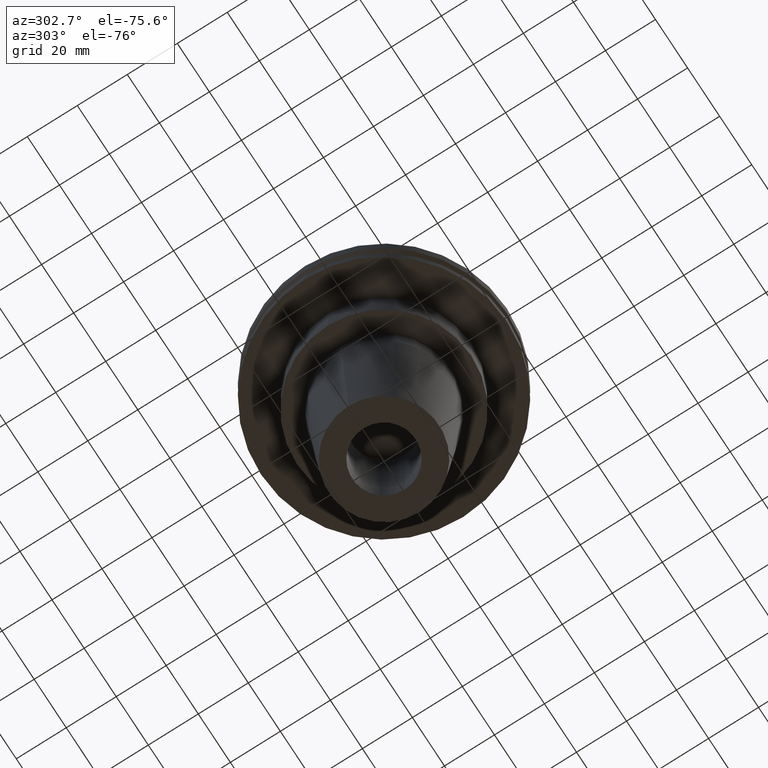
[diagram: clean part render]
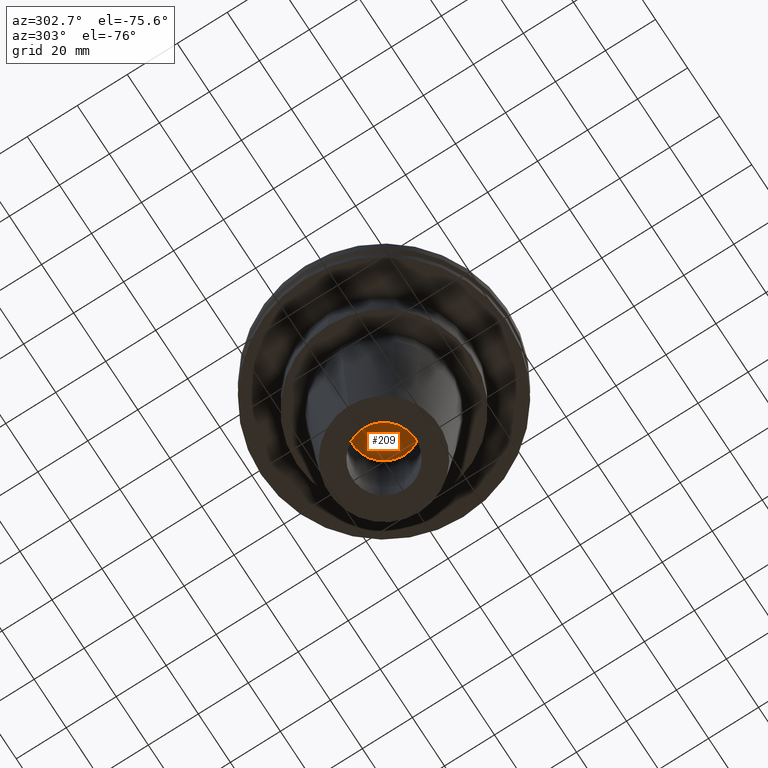
[diagram: same view with one face highlighted and labeled with its STEP entity id]
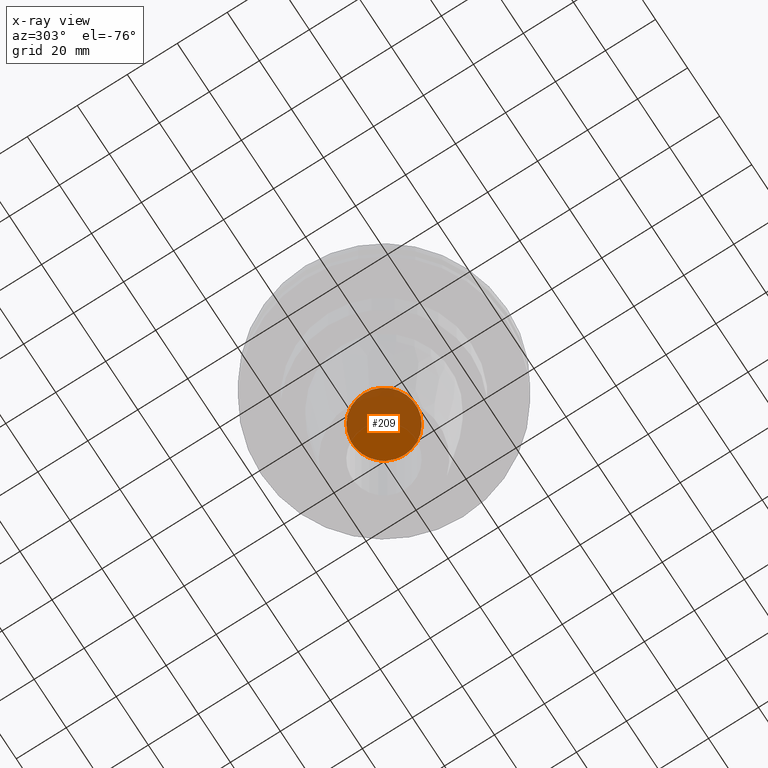
[diagram: x-ray of the same camera — body ghosted, the highlighted face saturated]
A machine part, auxiliary view. The second image highlights one B-rep face of the part: STEP entity #209.
The next image is the same camera in x-ray: the body ghosted, the highlighted face saturated — about 58% of this face is hidden behind the body in this view.
In plain terms, the highlighted planar face has unit normal (0, -0, 1).
Its self-contained STEP definition (entity closure, byte-faithful):
#30 = CARTESIAN_POINT ( 'NONE',  ( 0.000000000000000000, 12.69999999999998508, -54.59999999999999432 ) ) ;
#58 = CARTESIAN_POINT ( 'NONE',  ( 0.000000000000000000, 0.000000000000000000, -54.59999999999998721 ) ) ;
#103 = DIRECTION ( 'NONE',  ( 1.000000000000000000, 0.000000000000000000, 0.000000000000000000 ) ) ;
#108 = VERTEX_POINT ( 'NONE', #744 ) ;
#137 = CIRCLE ( 'NONE', #625, 12.69999999999998508 ) ;
#199 = VERTEX_POINT ( 'NONE', #427 ) ;
#209 = ADVANCED_FACE ( 'NONE', ( #823 ), #308, .F. ) ;
#250 = DIRECTION ( 'NONE',  ( -0.000000000000000000, -0.000000000000000000, 1.000000000000000000 ) ) ;
#308 = PLANE ( 'NONE',  #344 ) ;
#339 = EDGE_CURVE ( 'NONE', #199, #108, #720, .T. ) ;
#344 = AXIS2_PLACEMENT_3D ( 'NONE', #30, #439, #103 ) ;
#382 = DIRECTION ( 'NONE',  ( -0.000000000000000000, -0.000000000000000000, 1.000000000000000000 ) ) ;
#427 = CARTESIAN_POINT ( 'NONE',  ( 12.69999999999998508, 0.000000000000000000, -54.59999999999998721 ) ) ;
#439 = DIRECTION ( 'NONE',  ( 0.000000000000000000, -0.000000000000000000, 1.000000000000000000 ) ) ;
#604 = EDGE_CURVE ( 'NONE', #108, #199, #137, .T. ) ;
#625 = AXIS2_PLACEMENT_3D ( 'NONE', #712, #250, #837 ) ;
#631 = EDGE_LOOP ( 'NONE', ( #811, #669 ) ) ;
#669 = ORIENTED_EDGE ( 'NONE', *, *, #604, .F. ) ;
#712 = CARTESIAN_POINT ( 'NONE',  ( 0.000000000000000000, 0.000000000000000000, -54.59999999999998721 ) ) ;
#720 = CIRCLE ( 'NONE', #826, 12.69999999999998508 ) ;
#744 = CARTESIAN_POINT ( 'NONE',  ( -12.69999999999998508, 1.555301434917137052E-15, -54.59999999999998721 ) ) ;
#785 = DIRECTION ( 'NONE',  ( 1.000000000000000000, 0.000000000000000000, 0.000000000000000000 ) ) ;
#811 = ORIENTED_EDGE ( 'NONE', *, *, #339, .F. ) ;
#823 = FACE_OUTER_BOUND ( 'NONE', #631, .T. ) ;
#826 = AXIS2_PLACEMENT_3D ( 'NONE', #58, #382, #785 ) ;
#837 = DIRECTION ( 'NONE',  ( 1.000000000000000000, 0.000000000000000000, 0.000000000000000000 ) ) ;